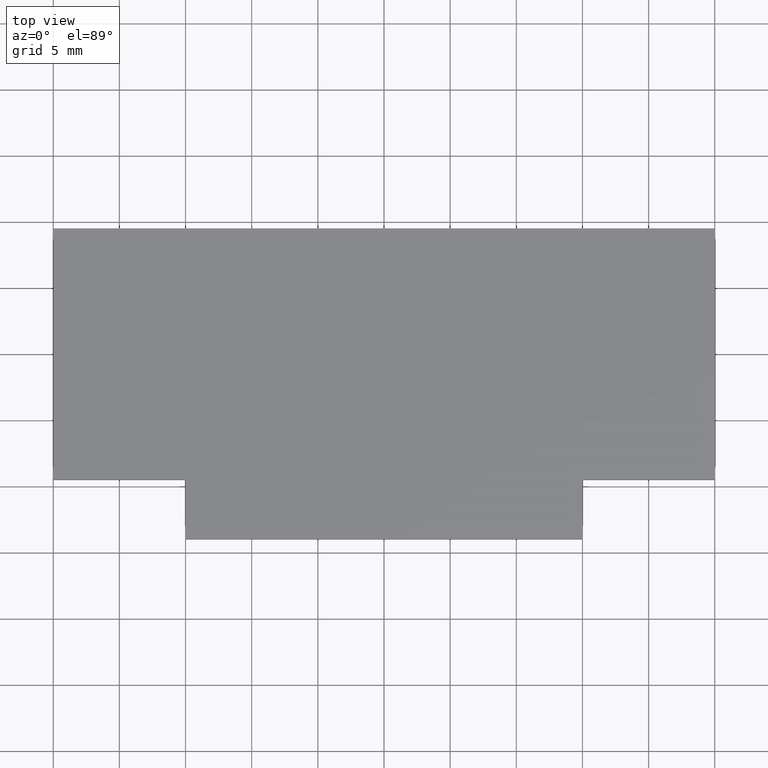
[diagram: clean part render]
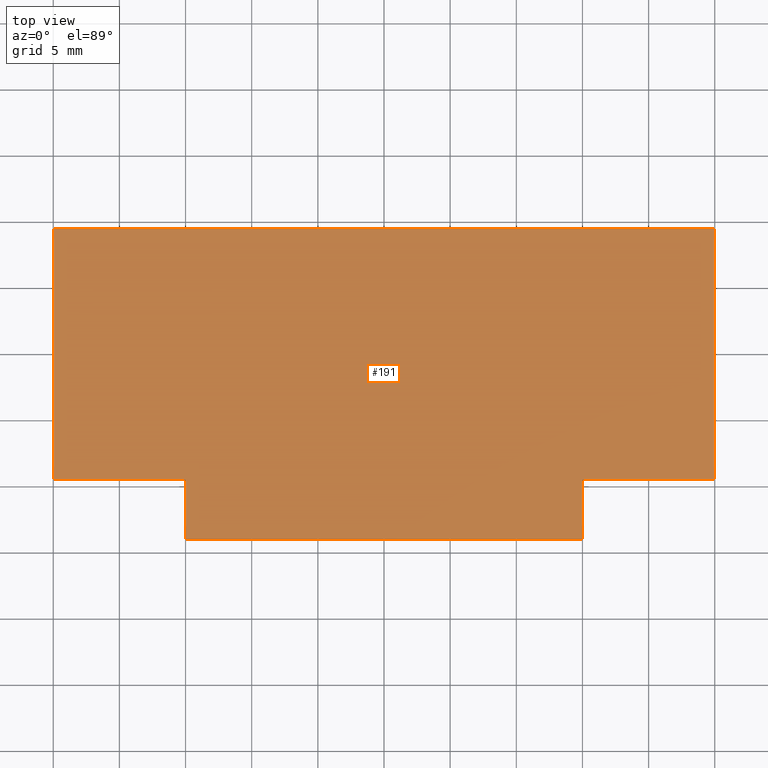
[diagram: same view with one face highlighted and labeled with its STEP entity id]
A machine part, top view. The second image highlights one B-rep face of the part: STEP entity #191.
In plain terms, the highlighted planar face has unit normal (0, 0, 1).
Its self-contained STEP definition (entity closure, byte-faithful):
#25=FACE_OUTER_BOUND('',#35,.T.);
#35=EDGE_LOOP('',(#164,#165,#166,#167,#168,#169,#170,#171));
#44=LINE('',#289,#68);
#47=LINE('',#294,#71);
#49=LINE('',#298,#73);
#51=LINE('',#302,#75);
#53=LINE('',#306,#77);
#55=LINE('',#310,#79);
#57=LINE('',#314,#81);
#59=LINE('',#317,#83);
#68=VECTOR('',#236,10.);
#71=VECTOR('',#241,10.);
#73=VECTOR('',#245,10.);
#75=VECTOR('',#249,10.);
#77=VECTOR('',#253,10.);
#79=VECTOR('',#257,10.);
#81=VECTOR('',#261,10.);
#83=VECTOR('',#265,10.);
#92=VERTEX_POINT('',#287);
#93=VERTEX_POINT('',#288);
#94=VERTEX_POINT('',#293);
#95=VERTEX_POINT('',#297);
#96=VERTEX_POINT('',#301);
#97=VERTEX_POINT('',#305);
#98=VERTEX_POINT('',#309);
#99=VERTEX_POINT('',#313);
#108=EDGE_CURVE('',#92,#93,#44,.T.);
#111=EDGE_CURVE('',#93,#94,#47,.T.);
#113=EDGE_CURVE('',#94,#95,#49,.T.);
#115=EDGE_CURVE('',#95,#96,#51,.T.);
#117=EDGE_CURVE('',#96,#97,#53,.T.);
#119=EDGE_CURVE('',#97,#98,#55,.T.);
#121=EDGE_CURVE('',#98,#99,#57,.T.);
#123=EDGE_CURVE('',#99,#92,#59,.T.);
#164=ORIENTED_EDGE('',*,*,#108,.F.);
#165=ORIENTED_EDGE('',*,*,#123,.F.);
#166=ORIENTED_EDGE('',*,*,#121,.F.);
#167=ORIENTED_EDGE('',*,*,#119,.F.);
#168=ORIENTED_EDGE('',*,*,#117,.F.);
#169=ORIENTED_EDGE('',*,*,#115,.F.);
#170=ORIENTED_EDGE('',*,*,#113,.F.);
#171=ORIENTED_EDGE('',*,*,#111,.F.);
#181=PLANE('',#221);
#191=ADVANCED_FACE('',(#25),#181,.T.);
#221=AXIS2_PLACEMENT_3D('',#318,#266,#267);
#236=DIRECTION('',(0.,-1.,0.));
#241=DIRECTION('',(-1.,0.,0.));
#245=DIRECTION('',(0.,1.,0.));
#249=DIRECTION('',(-1.,-1.11022302462516E-16,0.));
#253=DIRECTION('',(2.3373116307898E-16,1.,0.));
#257=DIRECTION('',(1.,-2.22044604925031E-17,0.));
#261=DIRECTION('',(0.,-1.,0.));
#265=DIRECTION('',(-1.,8.88178419700125E-16,0.));
#266=DIRECTION('center_axis',(0.,0.,1.));
#267=DIRECTION('ref_axis',(1.,0.,0.));
#287=CARTESIAN_POINT('',(15.,-9.49999999999999,1.));
#288=CARTESIAN_POINT('',(15.,-14.,1.));
#289=CARTESIAN_POINT('',(15.,-9.49999999999999,1.));
#293=CARTESIAN_POINT('',(-15.,-14.,1.));
#294=CARTESIAN_POINT('',(15.,-14.,1.));
#297=CARTESIAN_POINT('',(-15.,-9.49999999999999,1.));
#298=CARTESIAN_POINT('',(-15.,-14.,1.));
#301=CARTESIAN_POINT('',(-25.,-9.5,1.));
#302=CARTESIAN_POINT('',(-15.,-9.49999999999999,1.));
#305=CARTESIAN_POINT('',(-25.,9.50000000000001,1.));
#306=CARTESIAN_POINT('',(-25.,-9.5,1.));
#309=CARTESIAN_POINT('',(25.,9.5,1.));
#310=CARTESIAN_POINT('',(-25.,9.50000000000001,1.));
#313=CARTESIAN_POINT('',(25.,-9.5,1.));
#314=CARTESIAN_POINT('',(25.,9.5,1.));
#317=CARTESIAN_POINT('',(25.,-9.5,1.));
#318=CARTESIAN_POINT('Origin',(1.17961196366423E-15,-1.63775510204082,1.));